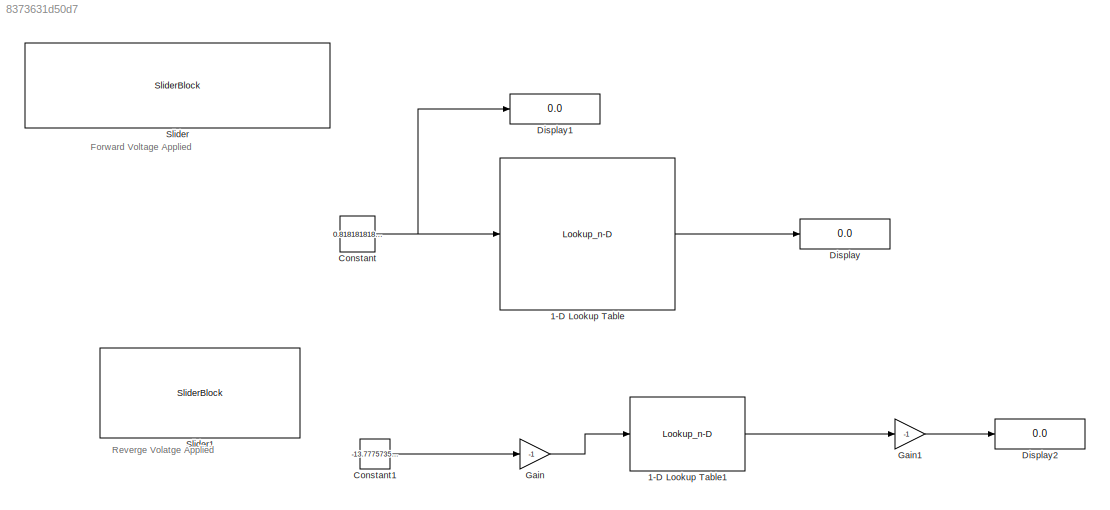
MODEL slx_8373631d50d7
KIND model
CONFIG AbsTol = auto
CONFIG EnableMultiTasking = off
CONFIG FixedStep = auto
CONFIG MaxStep = auto
CONFIG MinStep = auto
CONFIG RelTol = 1e-3
CONFIG SampleTimeConstraint = Unconstrained
CONFIG SolverName = VariableStepAuto
CONFIG StartTime = 0.0
CONFIG StopTime = inf
BLOCK [Lookup_n-D] 1-D Lookup Table
  BreakpointsForDimension1 = [0.12,0.14,0.16,0.18,0.20,0.24,0.26,0.28,0.30,0.35,0.38,0.40]
  BreakpointsForDimension2 = [-150,-100,-50]
  InputPortMap = u0
  InternalRulePriority = Speed
  NumberOfTableDimensions = 1
  Ports = [1, 1]
  RndMeth = Simplest
  Table = [0.01,0.02,0.03,0.04,0.05,0.06,0.08,0.12,0.20,0.25,5,10]
BLOCK [Lookup_n-D] 1-D Lookup Table1
  BreakpointsForDimension1 = [0.5,1,10,14,14.5,14.7]
  InputPortMap = u0
  InternalRulePriority = Speed
  NumberOfTableDimensions = 1
  Ports = [1, 1]
  RndMeth = Simplest
  Table = [5,5,5,5,200,400]
BLOCK [Constant] Constant
  Value = 0.8181818181818181
BLOCK [Constant] Constant1
  Value = -13.77757352941176
BLOCK [Display] Display
  Decimation = 1
  Ports = [1]
BLOCK [Display] Display1
  Decimation = 1
  Ports = [1]
BLOCK [Display] Display2
  Decimation = 1
  Ports = [1]
BLOCK [Gain] Gain
  Gain = -1
BLOCK [Gain] Gain1
  Gain = -1
BLOCK [SliderBlock] Slider
  ScaleMax = 3
BLOCK [SliderBlock] Slider1
  ScaleMax = 0
  ScaleMin = -50
ANNOTATION (root): Forward Voltage Applied
ANNOTATION (root): Reverge Volatge Applied
LINE 1-D Lookup Table1:1 -> Gain1:1
LINE 1-D Lookup Table:1 -> Display:1
LINE Constant1:1 -> Gain:1
NET Constant:1 -> 1-D Lookup Table:1, Display1:1
LINE Gain1:1 -> Display2:1
LINE Gain:1 -> 1-D Lookup Table1:1
note: NET lines group one-source signal fan-out (src -> all destinations, sorted); 1:1 wires keep LINE
